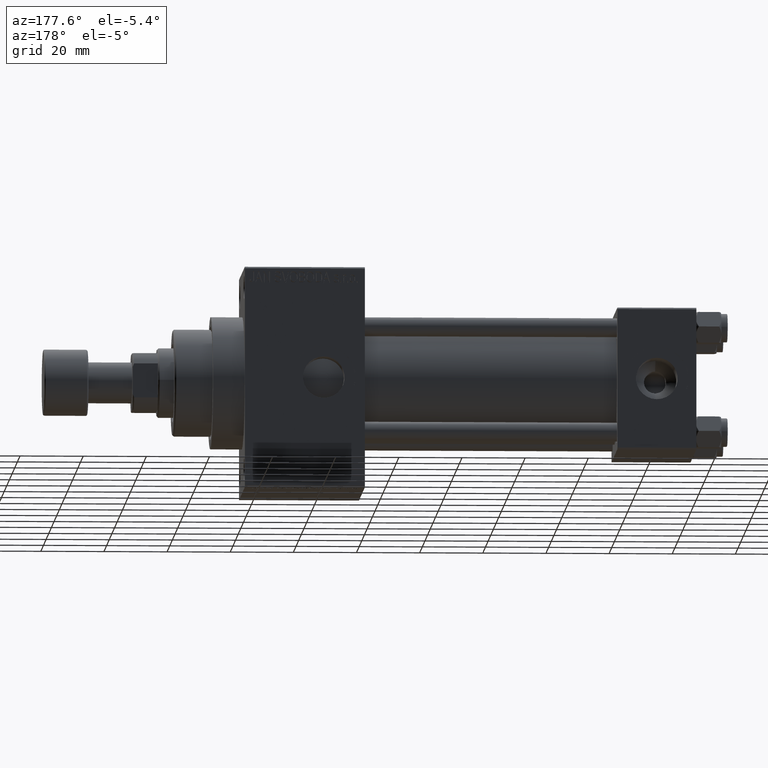
[diagram: clean part render]
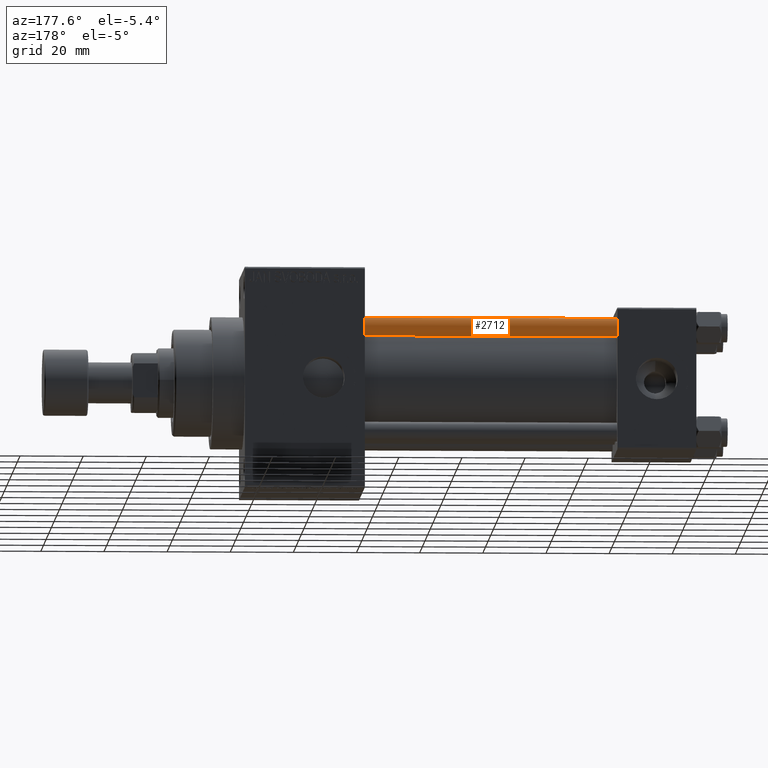
[diagram: same view with one face highlighted and labeled with its STEP entity id]
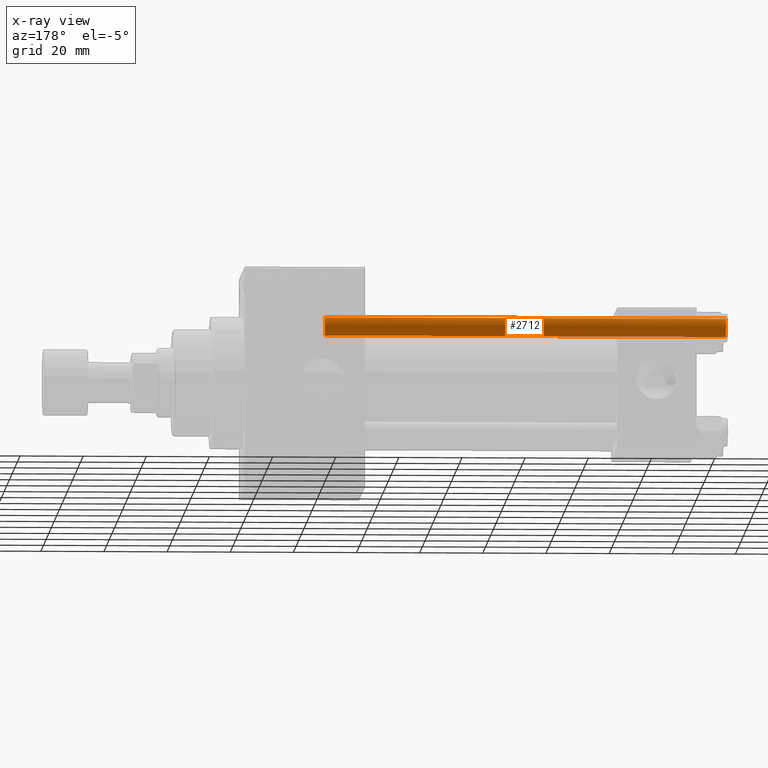
[diagram: x-ray of the same camera — body ghosted, the highlighted face saturated]
A machine part, auxiliary view. The second image highlights one B-rep face of the part: STEP entity #2712.
The next image is the same camera in x-ray: the body ghosted, the highlighted face saturated — about 0% of this face is hidden behind the body in this view.
In plain terms, the highlighted cylindrical surface (edge-blend (fillet) strip) has radius 3 mm, axis along (-1, -0, 0).
Its self-contained STEP definition (entity closure, byte-faithful):
#776 = VERTEX_POINT ( 'NONE', #1657 ) ;
#1657 = CARTESIAN_POINT ( 'NONE',  ( 3.000000000000000444, 3.673940397442060361E-16, 0.5000000000000281997 ) ) ;
#2712 = ADVANCED_FACE ( 'NONE', ( #47608 ), #21642, .T. ) ;
#2991 = ORIENTED_EDGE ( 'NONE', *, *, #41606, .F. ) ;
#4704 = CARTESIAN_POINT ( 'NONE',  ( 0.000000000000000000, 0.000000000000000000, 0.5000000000000281997 ) ) ;
#4863 = ORIENTED_EDGE ( 'NONE', *, *, #30281, .T. ) ;
#6507 = DIRECTION ( 'NONE',  ( 0.000000000000000000, 0.000000000000000000, -1.000000000000000000 ) ) ;
#8028 = CIRCLE ( 'NONE', #47211, 3.000000000000000444 ) ;
#8556 = DIRECTION ( 'NONE',  ( 1.000000000000000000, 0.000000000000000000, 0.000000000000000000 ) ) ;
#9199 = EDGE_CURVE ( 'NONE', #42377, #776, #22562, .T. ) ;
#10026 = VERTEX_POINT ( 'NONE', #38606 ) ;
#16537 = CARTESIAN_POINT ( 'NONE',  ( 3.000000000000000444, 3.673940397442060361E-16, 127.4999999999999716 ) ) ;
#17109 = DIRECTION ( 'NONE',  ( 1.000000000000000000, 0.000000000000000000, 0.000000000000000000 ) ) ;
#20995 = AXIS2_PLACEMENT_3D ( 'NONE', #38758, #6507, #17109 ) ;
#21642 = CYLINDRICAL_SURFACE ( 'NONE', #28877, 3.000000000000000444 ) ;
#21869 = DIRECTION ( 'NONE',  ( -0.000000000000000000, -0.000000000000000000, -1.000000000000000000 ) ) ;
#22029 = EDGE_CURVE ( 'NONE', #35942, #42377, #22492, .T. ) ;
#22492 = CIRCLE ( 'NONE', #20995, 3.000000000000000444 ) ;
#22562 = LINE ( 'NONE', #27143, #45213 ) ;
#24404 = ORIENTED_EDGE ( 'NONE', *, *, #22029, .T. ) ;
#24472 = VECTOR ( 'NONE', #45073, 1000.000000000000000 ) ;
#26382 = CARTESIAN_POINT ( 'NONE',  ( -3.000000000000000444, 0.000000000000000000, 127.4999999999999716 ) ) ;
#27143 = CARTESIAN_POINT ( 'NONE',  ( 3.000000000000000444, 3.673940397442060361E-16, 128.0000000000000000 ) ) ;
#27295 = ORIENTED_EDGE ( 'NONE', *, *, #9199, .T. ) ;
#28877 = AXIS2_PLACEMENT_3D ( 'NONE', #36783, #21869, #36541 ) ;
#30281 = EDGE_CURVE ( 'NONE', #776, #10026, #8028, .T. ) ;
#30762 = DIRECTION ( 'NONE',  ( -0.000000000000000000, -0.000000000000000000, -1.000000000000000000 ) ) ;
#35942 = VERTEX_POINT ( 'NONE', #26382 ) ;
#36541 = DIRECTION ( 'NONE',  ( -1.000000000000000000, 0.000000000000000000, 0.000000000000000000 ) ) ;
#36783 = CARTESIAN_POINT ( 'NONE',  ( 0.000000000000000000, 0.000000000000000000, 128.0000000000000000 ) ) ;
#37405 = DIRECTION ( 'NONE',  ( -0.000000000000000000, -0.000000000000000000, 1.000000000000000000 ) ) ;
#38606 = CARTESIAN_POINT ( 'NONE',  ( -3.000000000000000444, 0.000000000000000000, 0.5000000000000281997 ) ) ;
#38758 = CARTESIAN_POINT ( 'NONE',  ( 0.000000000000000000, 0.000000000000000000, 127.4999999999999716 ) ) ;
#39443 = EDGE_LOOP ( 'NONE', ( #24404, #27295, #4863, #2991 ) ) ;
#41606 = EDGE_CURVE ( 'NONE', #35942, #10026, #41707, .T. ) ;
#41707 = LINE ( 'NONE', #45324, #24472 ) ;
#42377 = VERTEX_POINT ( 'NONE', #16537 ) ;
#45073 = DIRECTION ( 'NONE',  ( -0.000000000000000000, -0.000000000000000000, -1.000000000000000000 ) ) ;
#45213 = VECTOR ( 'NONE', #30762, 1000.000000000000000 ) ;
#45324 = CARTESIAN_POINT ( 'NONE',  ( -3.000000000000000444, 0.000000000000000000, 128.0000000000000000 ) ) ;
#47211 = AXIS2_PLACEMENT_3D ( 'NONE', #4704, #37405, #8556 ) ;
#47608 = FACE_OUTER_BOUND ( 'NONE', #39443, .T. ) ;